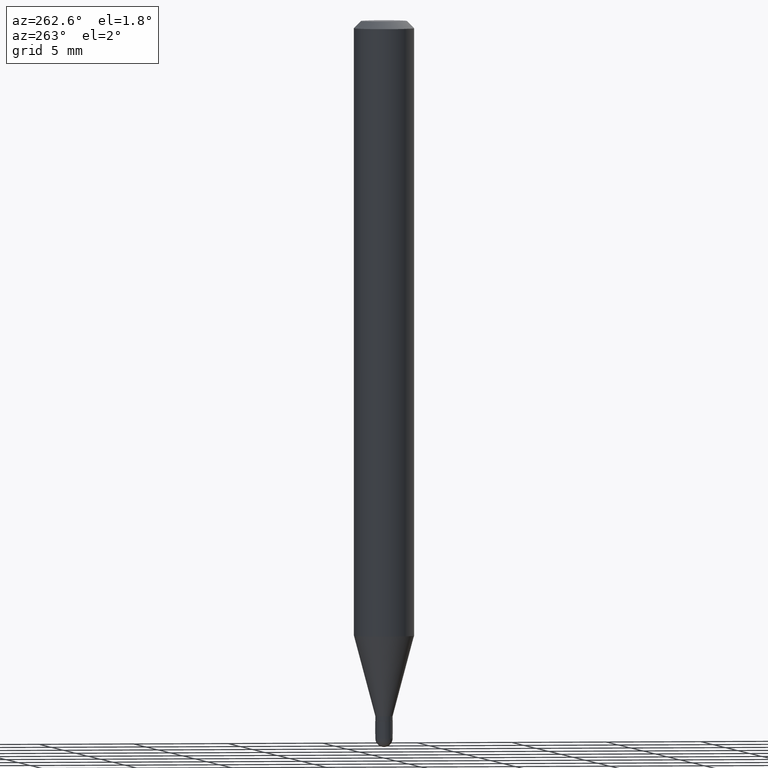
[diagram: clean part render]
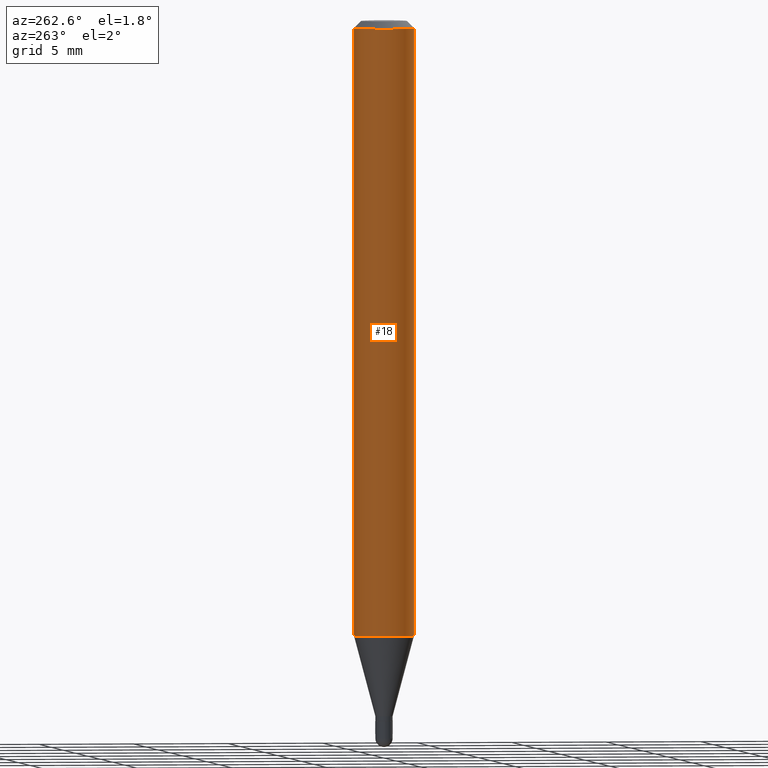
[diagram: same view with one face highlighted and labeled with its STEP entity id]
A machine part, auxiliary view. The second image highlights one B-rep face of the part: STEP entity #18.
In plain terms, the highlighted cylindrical surface (edge-blend (fillet) strip) has radius 1.5875 mm, axis along (-0, 0, 1).
Its self-contained STEP definition (entity closure, byte-faithful):
#18 = ADVANCED_FACE ( 'NONE', ( #107 ), #25, .T. ) ;
#24 = EDGE_CURVE ( 'NONE', #178, #501, #35, .T. ) ;
#25 = CYLINDRICAL_SURFACE ( 'NONE', #436, 0.06250000000000000000 ) ;
#35 = CIRCLE ( 'NONE', #507, 0.06250000000000000000 ) ;
#45 = ORIENTED_EDGE ( 'NONE', *, *, #312, .T. ) ;
#55 = VECTOR ( 'NONE', #94, 39.37007874015748143 ) ;
#68 = DIRECTION ( 'NONE',  ( -2.445456278020119844E-29, 3.491499279888508481E-15, 1.000000000000000000 ) ) ;
#94 = DIRECTION ( 'NONE',  ( -2.445456278020120124E-29, 3.491499279888508481E-15, 1.000000000000000000 ) ) ;
#107 = FACE_OUTER_BOUND ( 'NONE', #228, .T. ) ;
#116 = EDGE_CURVE ( 'NONE', #401, #178, #499, .T. ) ;
#145 = CARTESIAN_POINT ( 'NONE',  ( 4.440892098500625669E-16, 0.06250000000000000000, -2.182187049930317801E-16 ) ) ;
#146 = CARTESIAN_POINT ( 'NONE',  ( 3.668184417030121542E-31, -5.237248919832678831E-17, -0.01499999999999976179 ) ) ;
#166 = LINE ( 'NONE', #446, #55 ) ;
#178 = VERTEX_POINT ( 'NONE', #188 ) ;
#180 = CARTESIAN_POINT ( 'NONE',  ( 0.000000000000000000, 0.000000000000000000, 0.000000000000000000 ) ) ;
#182 = AXIS2_PLACEMENT_3D ( 'NONE', #280, #68, #327 ) ;
#185 = DIRECTION ( 'NONE',  ( -6.982962677686265922E-15, -1.000000000000000000, 3.483106191921935554E-15 ) ) ;
#188 = CARTESIAN_POINT ( 'NONE',  ( 4.440892098500937762E-16, 0.06249999999999993755, -0.01499999999999997863 ) ) ;
#228 = EDGE_LOOP ( 'NONE', ( #417, #352, #45, #304 ) ) ;
#280 = CARTESIAN_POINT ( 'NONE',  ( 3.105542980298851762E-29, -4.433937820452434626E-15, -1.269923739063185675 ) ) ;
#286 = VERTEX_POINT ( 'NONE', #409 ) ;
#303 = DIRECTION ( 'NONE',  ( -2.445456278020119844E-29, 3.491499279888508481E-15, 1.000000000000000000 ) ) ;
#304 = ORIENTED_EDGE ( 'NONE', *, *, #24, .F. ) ;
#309 = DIRECTION ( 'NONE',  ( -2.445456278020120124E-29, 3.491499279888508481E-15, 1.000000000000000000 ) ) ;
#312 = EDGE_CURVE ( 'NONE', #286, #501, #166, .T. ) ;
#327 = DIRECTION ( 'NONE',  ( -6.982962677686265922E-15, -1.000000000000000000, 4.370956789862821150E-15 ) ) ;
#348 = DIRECTION ( 'NONE',  ( -6.982962677686265922E-15, -1.000000000000000000, 3.491499279888508481E-15 ) ) ;
#352 = ORIENTED_EDGE ( 'NONE', *, *, #503, .T. ) ;
#401 = VERTEX_POINT ( 'NONE', #469 ) ;
#409 = CARTESIAN_POINT ( 'NONE',  ( -4.364351673553606573E-16, -0.06250000000000444089, -1.269923739063185453 ) ) ;
#417 = ORIENTED_EDGE ( 'NONE', *, *, #116, .F. ) ;
#436 = AXIS2_PLACEMENT_3D ( 'NONE', #180, #303, #348 ) ;
#446 = CARTESIAN_POINT ( 'NONE',  ( -4.364351673553916201E-16, -0.06250000000000000000, 2.182187049930317801E-16 ) ) ;
#462 = DIRECTION ( 'NONE',  ( -2.445456278020119844E-29, 3.491499279888508481E-15, 1.000000000000000000 ) ) ;
#469 = CARTESIAN_POINT ( 'NONE',  ( 4.440892098500933817E-16, 0.06249999999999555217, -1.269923739063185897 ) ) ;
#481 = CARTESIAN_POINT ( 'NONE',  ( -4.364351673553912750E-16, -0.06250000000000005551, -0.01499999999999954321 ) ) ;
#497 = VECTOR ( 'NONE', #309, 39.37007874015748143 ) ;
#498 = CIRCLE ( 'NONE', #182, 0.06250000000000000000 ) ;
#499 = LINE ( 'NONE', #145, #497 ) ;
#501 = VERTEX_POINT ( 'NONE', #481 ) ;
#503 = EDGE_CURVE ( 'NONE', #401, #286, #498, .T. ) ;
#507 = AXIS2_PLACEMENT_3D ( 'NONE', #146, #462, #185 ) ;